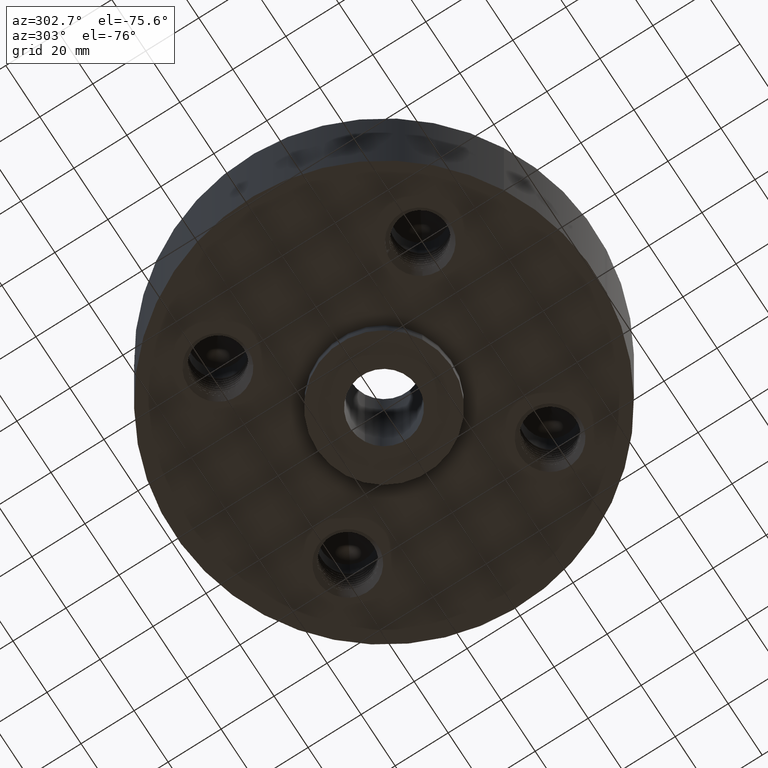
[diagram: clean part render]
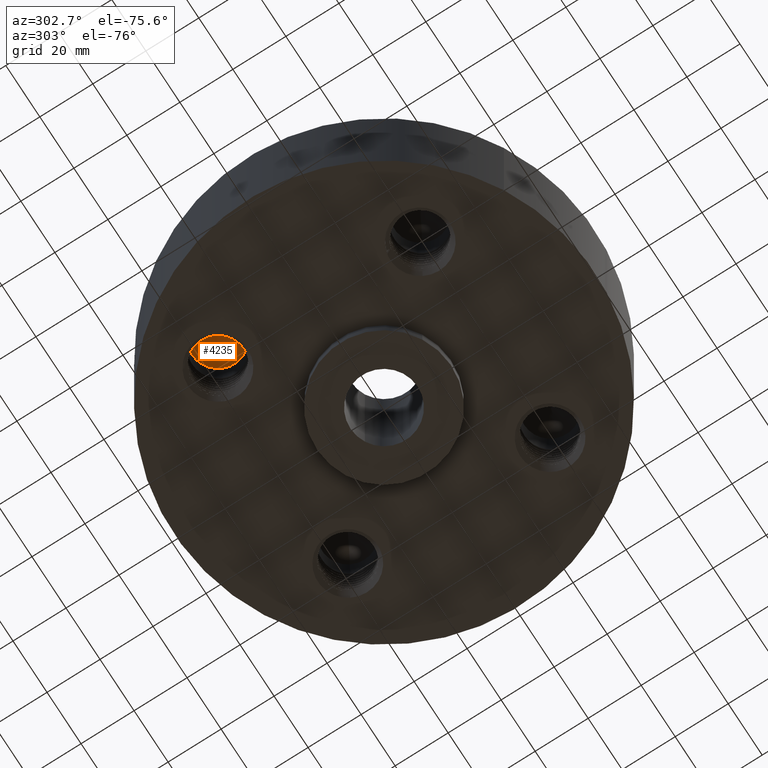
[diagram: same view with one face highlighted and labeled with its STEP entity id]
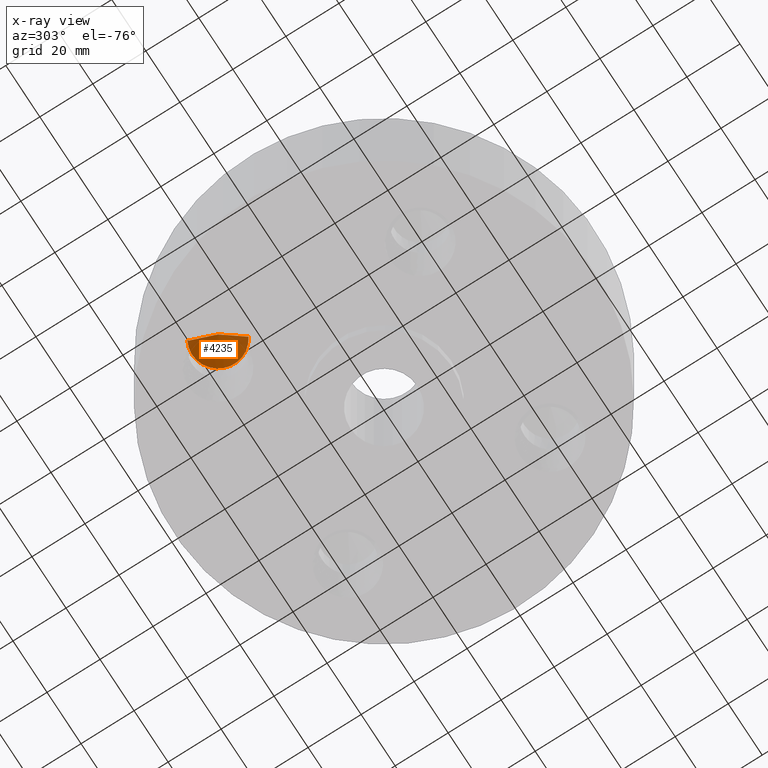
[diagram: x-ray of the same camera — body ghosted, the highlighted face saturated]
A machine part, auxiliary view. The second image highlights one B-rep face of the part: STEP entity #4235.
The next image is the same camera in x-ray: the body ghosted, the highlighted face saturated — about 17% of this face is hidden behind the body in this view.
In plain terms, the highlighted conical surface has half-angle 60 deg.
Its self-contained STEP definition (entity closure, byte-faithful):
#4207=AXIS2_PLACEMENT_3D('Cone Axis2P3D',#4204,#4205,#4206) ;
#4220=AXIS2_PLACEMENT_3D('Circle Axis2P3D',#4218,#4219,$) ;
#4204=CARTESIAN_POINT('Axis2P3D Location',(-1.50260191003,1.50260191003,1.66112515311)) ;
#4209=CARTESIAN_POINT('Line Origine',(-1.59441190067,1.67065897063,1.55056257656)) ;
#4213=CARTESIAN_POINT('Vertex',(-1.50260191003,1.50260191003,1.66112515311)) ;
#4215=CARTESIAN_POINT('Vertex',(-1.68622189131,1.83871603123,1.44000000001)) ;
#4218=CARTESIAN_POINT('Axis2P3D Location',(-1.50260191003,1.50260191003,1.44000000001)) ;
#4222=CARTESIAN_POINT('Vertex',(-1.31898192874,1.16648778882,1.44000000001)) ;
#4225=CARTESIAN_POINT('Line Origine',(-1.41079191938,1.33454484942,1.55056257656)) ;
#4205=DIRECTION('Axis2P3D Direction',(-0.,-0.,-0.0393700787402)) ;
#4206=DIRECTION('Axis2P3D XDirection',(0.0188750212049,-0.0345504945626,0.)) ;
#4210=DIRECTION('Vector Direction',(-0.0163462478604,0.0299216060045,-0.0196850393701)) ;
#4219=DIRECTION('Axis2P3D Direction',(-0.,0.,-0.0393700787402)) ;
#4226=DIRECTION('Vector Direction',(0.0163462478604,-0.0299216060045,-0.0196850393701)) ;
#4211=VECTOR('Line Direction',#4210,0.0393700787402) ;
#4227=VECTOR('Line Direction',#4226,0.0393700787402) ;
#4231=ORIENTED_EDGE('',*,*,#4217,.T.) ;
#4232=ORIENTED_EDGE('',*,*,#4224,.F.) ;
#4233=ORIENTED_EDGE('',*,*,#4229,.F.) ;
#4235=ADVANCED_FACE('PartBody',(#4234),#4208,.F.) ;
#4221=CIRCLE('generated circle',#4220,0.383000000002) ;
#4208=CONICAL_SURFACE('Cone',#4207,0.,1.0471975512) ;
#4217=EDGE_CURVE('',#4214,#4216,#4212,.T.) ;
#4224=EDGE_CURVE('',#4223,#4216,#4221,.F.) ;
#4229=EDGE_CURVE('',#4214,#4223,#4228,.T.) ;
#4230=EDGE_LOOP('',(#4231,#4232,#4233)) ;
#4234=FACE_OUTER_BOUND('',#4230,.T.) ;
#4212=LINE('Line',#4209,#4211) ;
#4228=LINE('Line',#4225,#4227) ;
#4214=VERTEX_POINT('',#4213) ;
#4216=VERTEX_POINT('',#4215) ;
#4223=VERTEX_POINT('',#4222) ;